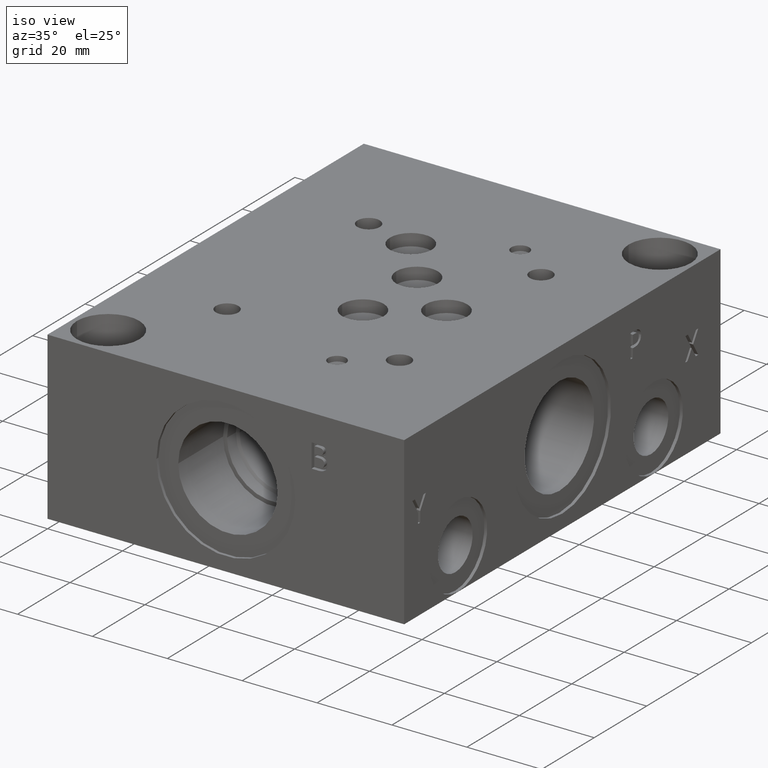
[diagram: clean part render]
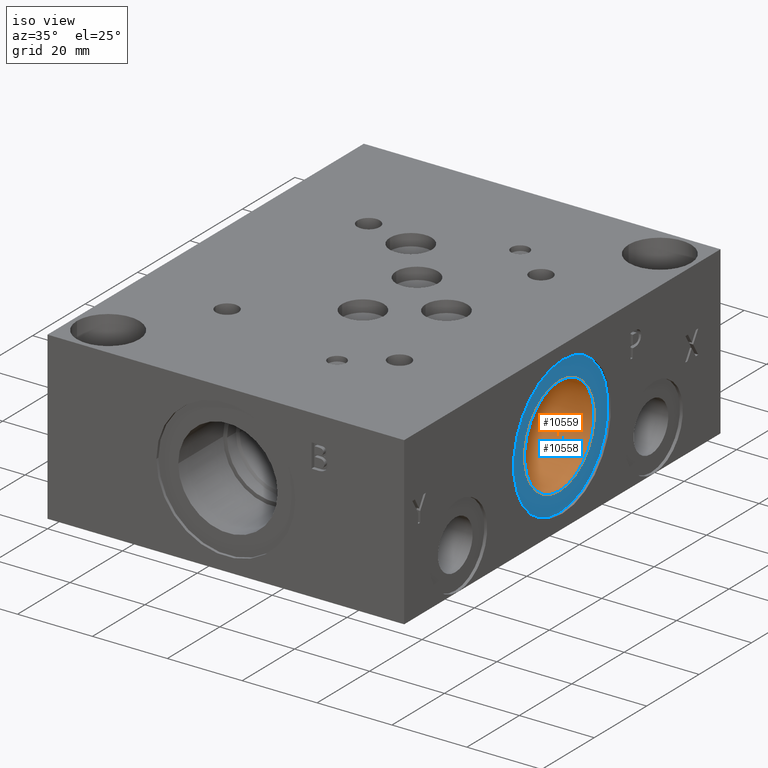
[diagram: same view with the hole feature highlighted: cylindrical wall and planar end face, labeled with their STEP entity ids]
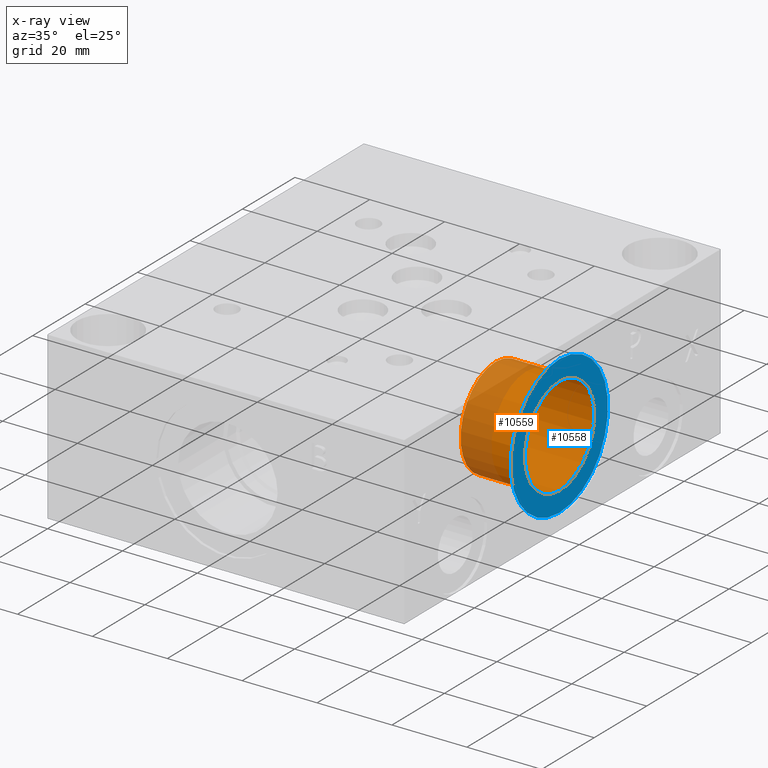
[diagram: x-ray of the same camera — body ghosted, the hole faces saturated]
A machine part, iso view. The highlighted faces form one hole feature of diameter 26.543 mm: the cylindrical wall (entity #10559, orange) and its adjacent planar end face (entity #10558, blue) — they share a circular edge in the B-rep.
The next image is the same camera in x-ray (body ghosted, the hole faces saturated) — the bore reads through the body.
Wall:
#50=CYLINDRICAL_SURFACE('',#11041,13.2715);
#138=CIRCLE('',#11039,13.2715);
#139=CIRCLE('',#11040,13.2715);
#140=CIRCLE('',#11042,13.2715);
#141=CIRCLE('',#11043,13.2715);
#1178=FACE_OUTER_BOUND('',#1764,.T.);
#1764=EDGE_LOOP('',(#8971,#8972,#8973,#8974,#8975,#8976));
#2846=LINE('',#17733,#3886);
#3886=VECTOR('',#13012,13.2715);
#4817=VERTEX_POINT('',#17727);
#4818=VERTEX_POINT('',#17728);
#4819=VERTEX_POINT('',#17732);
#4820=VERTEX_POINT('',#17734);
#6241=EDGE_CURVE('',#4817,#4818,#138,.T.);
#6242=EDGE_CURVE('',#4818,#4817,#139,.T.);
#6243=EDGE_CURVE('',#4818,#4819,#2846,.T.);
#6244=EDGE_CURVE('',#4819,#4820,#140,.T.);
#6245=EDGE_CURVE('',#4820,#4819,#141,.T.);
#8971=ORIENTED_EDGE('',*,*,#6241,.F.);
#8972=ORIENTED_EDGE('',*,*,#6242,.F.);
#8973=ORIENTED_EDGE('',*,*,#6243,.T.);
#8974=ORIENTED_EDGE('',*,*,#6244,.T.);
#8975=ORIENTED_EDGE('',*,*,#6245,.T.);
#8976=ORIENTED_EDGE('',*,*,#6243,.F.);
#10559=ADVANCED_FACE('',(#1178),#50,.F.);
#11039=AXIS2_PLACEMENT_3D('',#17729,#13006,#13007);
#11040=AXIS2_PLACEMENT_3D('',#17730,#13008,#13009);
#11041=AXIS2_PLACEMENT_3D('',#17731,#13010,#13011);
#11042=AXIS2_PLACEMENT_3D('',#17735,#13013,#13014);
#11043=AXIS2_PLACEMENT_3D('',#17736,#13015,#13016);
#13006=DIRECTION('center_axis',(-1.,0.,0.));
#13007=DIRECTION('ref_axis',(0.,0.,1.));
#13008=DIRECTION('center_axis',(-1.,0.,0.));
#13009=DIRECTION('ref_axis',(0.,0.,1.));
#13010=DIRECTION('center_axis',(-1.,0.,0.));
#13011=DIRECTION('ref_axis',(0.,0.,-1.));
#13012=DIRECTION('',(-1.,0.,0.));
#13013=DIRECTION('center_axis',(-1.,0.,0.));
#13014=DIRECTION('ref_axis',(0.,0.,1.));
#13015=DIRECTION('center_axis',(-1.,0.,0.));
#13016=DIRECTION('ref_axis',(0.,0.,1.));
#17727=CARTESIAN_POINT('',(94.4626,60.325,8.9535));
#17728=CARTESIAN_POINT('',(94.4626,60.325,35.4965));
#17729=CARTESIAN_POINT('Origin',(94.4626,60.325,22.225));
#17730=CARTESIAN_POINT('Origin',(94.4626,60.325,22.225));
#17731=CARTESIAN_POINT('Origin',(85.9155,60.325,22.225));
#17732=CARTESIAN_POINT('',(77.3684,60.325,35.4965));
#17733=CARTESIAN_POINT('',(85.9155,60.325,35.4965));
#17734=CARTESIAN_POINT('',(77.3684,60.325,8.9535));
#17735=CARTESIAN_POINT('Origin',(77.3684,60.325,22.225));
#17736=CARTESIAN_POINT('Origin',(77.3684,60.325,22.225));
End face:
#136=CIRCLE('',#11036,18.5547);
#137=CIRCLE('',#11037,18.5547);
#138=CIRCLE('',#11039,13.2715);
#139=CIRCLE('',#11040,13.2715);
#289=FACE_BOUND('',#1763,.T.);
#1177=FACE_OUTER_BOUND('',#1762,.T.);
#1762=EDGE_LOOP('',(#8967,#8968));
#1763=EDGE_LOOP('',(#8969,#8970));
#4815=VERTEX_POINT('',#17721);
#4816=VERTEX_POINT('',#17723);
#4817=VERTEX_POINT('',#17727);
#4818=VERTEX_POINT('',#17728);
#6239=EDGE_CURVE('',#4815,#4816,#136,.T.);
#6240=EDGE_CURVE('',#4816,#4815,#137,.T.);
#6241=EDGE_CURVE('',#4817,#4818,#138,.T.);
#6242=EDGE_CURVE('',#4818,#4817,#139,.T.);
#8967=ORIENTED_EDGE('',*,*,#6240,.F.);
#8968=ORIENTED_EDGE('',*,*,#6239,.F.);
#8969=ORIENTED_EDGE('',*,*,#6241,.T.);
#8970=ORIENTED_EDGE('',*,*,#6242,.T.);
#9632=PLANE('',#11038);
#10558=ADVANCED_FACE('',(#1177,#289),#9632,.F.);
#11036=AXIS2_PLACEMENT_3D('',#17724,#13000,#13001);
#11037=AXIS2_PLACEMENT_3D('',#17725,#13002,#13003);
#11038=AXIS2_PLACEMENT_3D('',#17726,#13004,#13005);
#11039=AXIS2_PLACEMENT_3D('',#17729,#13006,#13007);
#11040=AXIS2_PLACEMENT_3D('',#17730,#13008,#13009);
#13000=DIRECTION('center_axis',(-1.,0.,0.));
#13001=DIRECTION('ref_axis',(0.,0.,1.));
#13002=DIRECTION('center_axis',(-1.,0.,0.));
#13003=DIRECTION('ref_axis',(0.,0.,1.));
#13004=DIRECTION('center_axis',(-1.,0.,0.));
#13005=DIRECTION('ref_axis',(0.,0.,1.));
#13006=DIRECTION('center_axis',(-1.,0.,0.));
#13007=DIRECTION('ref_axis',(0.,0.,1.));
#13008=DIRECTION('center_axis',(-1.,0.,0.));
#13009=DIRECTION('ref_axis',(0.,0.,1.));
#17721=CARTESIAN_POINT('',(94.4626,60.325,40.7797));
#17723=CARTESIAN_POINT('',(94.4626,60.325,3.6703));
#17724=CARTESIAN_POINT('Origin',(94.4626,60.325,22.225));
#17725=CARTESIAN_POINT('Origin',(94.4626,60.325,22.225));
#17726=CARTESIAN_POINT('Origin',(94.4626,60.325,8.9535));
#17727=CARTESIAN_POINT('',(94.4626,60.325,8.9535));
#17728=CARTESIAN_POINT('',(94.4626,60.325,35.4965));
#17729=CARTESIAN_POINT('Origin',(94.4626,60.325,22.225));
#17730=CARTESIAN_POINT('Origin',(94.4626,60.325,22.225));